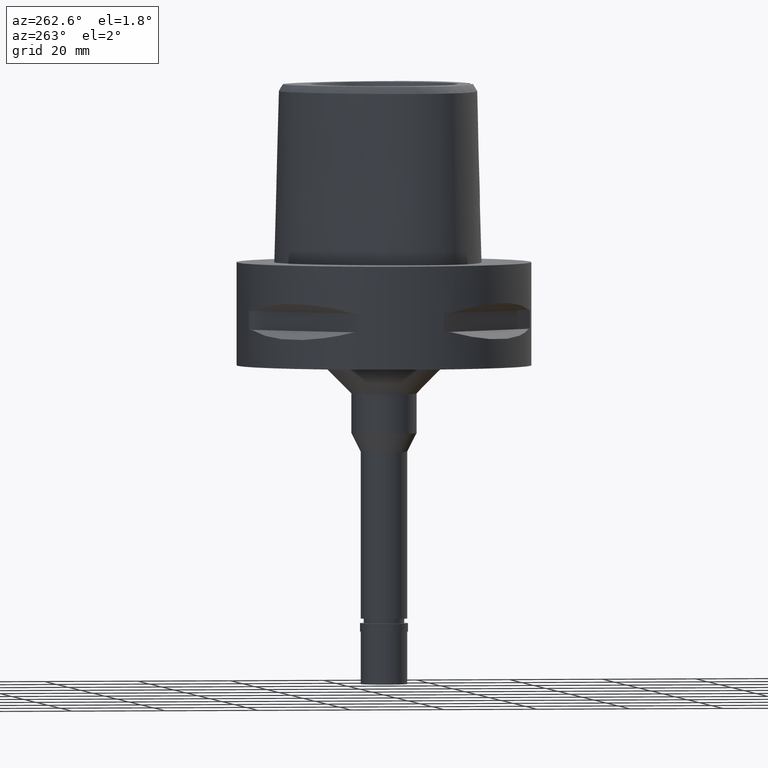
[diagram: clean part render]
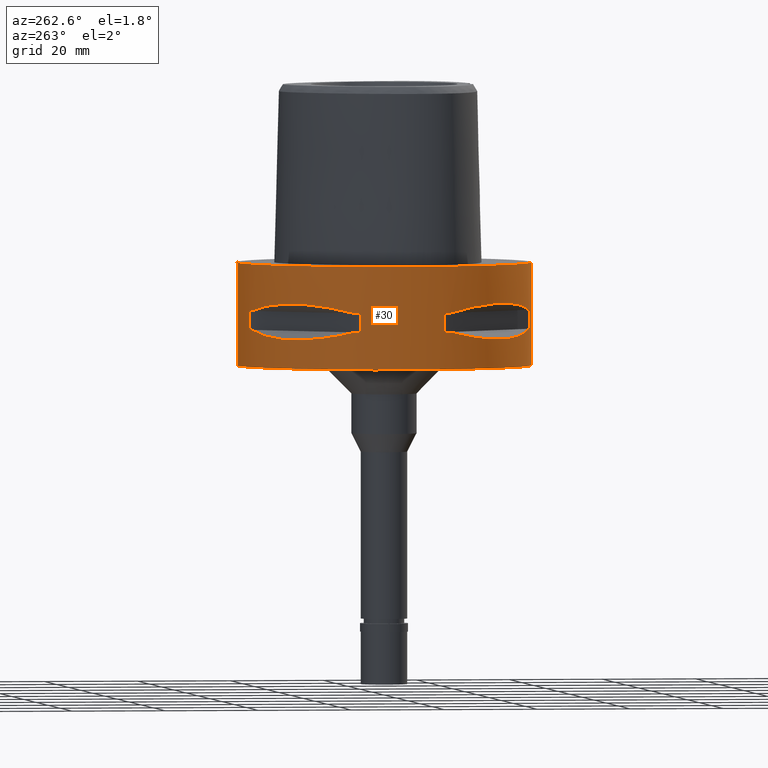
[diagram: same view with one face highlighted and labeled with its STEP entity id]
A machine part, auxiliary view. The second image highlights one B-rep face of the part: STEP entity #30.
In plain terms, the highlighted cylindrical surface (partial cylindrical patch) has radius 31.5 mm, axis along (0, 0, -1).
Its self-contained STEP definition (entity closure, byte-faithful):
#30 = ADVANCED_FACE ( 'NONE', ( #2249, #32, #2273 ), #813, .T. ) ;
#32 = FACE_BOUND ( 'NONE', #2233, .T. ) ;
#42 = DIRECTION ( 'NONE',  ( 0.0000000000000000000, -1.000000000000000000, 0.0000000000000000000 ) ) ;
#81 = ORIENTED_EDGE ( 'NONE', *, *, #3148, .F. ) ;
#87 = ORIENTED_EDGE ( 'NONE', *, *, #2111, .T. ) ;
#91 = ORIENTED_EDGE ( 'NONE', *, *, #1196, .T. ) ;
#119 = CARTESIAN_POINT ( 'NONE',  ( 0.0000000000000000000, 1.277490308530999908E-14, -9.950000000000001066 ) ) ;
#143 = CARTESIAN_POINT ( 'NONE',  ( -29.71690375017999841, -10.44775724750000023, -9.950000000002001244 ) ) ;
#158 = EDGE_CURVE ( 'NONE', #3780, #4651, #2885, .T. ) ;
#170 = EDGE_CURVE ( 'NONE', #3256, #1503, #2481, .T. ) ;
#173 = CARTESIAN_POINT ( 'NONE',  ( -29.71690375017999841, 10.44775724750000023, -14.05000000000000071 ) ) ;
#193 = ORIENTED_EDGE ( 'NONE', *, *, #2756, .T. ) ;
#227 = AXIS2_PLACEMENT_3D ( 'NONE', #884, #1675, #3972 ) ;
#234 = CARTESIAN_POINT ( 'NONE',  ( -10.44775724750000023, -29.71690375017999841, -9.950000000002001244 ) ) ;
#241 = LINE ( 'NONE', #664, #3764 ) ;
#245 = CARTESIAN_POINT ( 'NONE',  ( -26.42800887047648928, 17.14106442934974339, -15.43984550238795883 ) ) ;
#257 = ORIENTED_EDGE ( 'NONE', *, *, #4073, .T. ) ;
#298 = CARTESIAN_POINT ( 'NONE',  ( -26.58330558444622227, -16.89910283486742415, -15.40446471307544662 ) ) ;
#306 = VERTEX_POINT ( 'NONE', #1399 ) ;
#323 = CARTESIAN_POINT ( 'NONE',  ( -20.64154884328072370, 23.90617837147178193, -8.160627831312675440 ) ) ;
#335 = EDGE_LOOP ( 'NONE', ( #2162, #81, #3801, #91 ) ) ;
#341 = B_SPLINE_CURVE_WITH_KNOTS ( 'NONE', 3,
 ( #4457, #2862, #2456, #4796, #4436, #4483, #3694, #3271, #1323, #234 ),
 .UNSPECIFIED., .F., .F.,
 ( 4, 2, 2, 2, 4 ),
 ( 0.0000000000000000000, 0.2499999999999999445, 0.4999999999999998890, 0.7499999999999997780, 1.000000000000000000 ),
 .UNSPECIFIED. ) ;
#349 = ORIENTED_EDGE ( 'NONE', *, *, #3697, .T. ) ;
#353 = CARTESIAN_POINT ( 'NONE',  ( 0.0000000000000000000, 1.277490308530999908E-14, 4.315000000000000391 ) ) ;
#369 = LINE ( 'NONE', #2752, #1080 ) ;
#373 = CARTESIAN_POINT ( 'NONE',  ( -25.32725744467784779, -18.86897208072815246, -15.69588095933470129 ) ) ;
#414 = CARTESIAN_POINT ( 'NONE',  ( -8.981198972019999616, -30.19251670572000279, -14.05000000000000071 ) ) ;
#547 = VECTOR ( 'NONE', #3737, 1000.000000000000000 ) ;
#552 = VERTEX_POINT ( 'NONE', #1492 ) ;
#554 = CARTESIAN_POINT ( 'NONE',  ( -16.48208282229422039, 26.84474411198782207, -15.34094883778343110 ) ) ;
#580 = LINE ( 'NONE', #4025, #547 ) ;
#619 = AXIS2_PLACEMENT_3D ( 'NONE', #4665, #2736, #2428 ) ;
#664 = CARTESIAN_POINT ( 'NONE',  ( -8.981198972016999349, 30.19251670572000279, -9.950000000000001066 ) ) ;
#675 = CARTESIAN_POINT ( 'NONE',  ( -29.31542262584122227, -11.58970337495909853, -14.35229357167468578 ) ) ;
#701 = CARTESIAN_POINT ( 'NONE',  ( 0.0000000000000000000, 1.277490308530999908E-14, -14.05000000000000071 ) ) ;
#705 = EDGE_CURVE ( 'NONE', #2063, #1284, #4840, .T. ) ;
#717 = ORIENTED_EDGE ( 'NONE', *, *, #705, .T. ) ;
#771 = CARTESIAN_POINT ( 'NONE',  ( 0.0000000000000000000, 1.277490308530999908E-14, 0.0000000000000000000 ) ) ;
#777 = CARTESIAN_POINT ( 'NONE',  ( -16.96123479565102343, -26.54368690921830520, -15.41365572341627121 ) ) ;
#813 = CYLINDRICAL_SURFACE ( 'NONE', #1190, 31.50000000000000000 ) ;
#843 = B_SPLINE_CURVE_WITH_KNOTS ( 'NONE', 3,
 ( #905, #3992, #2065, #4810, #3612, #554, #2164, #2903, #3710, #4076, #1789, #2474, #2878, #3240, #1002, #3638, #4101, #245, #4880, #3331, #2113, #1744, #3312, #173 ),
 .UNSPECIFIED., .F., .F.,
 ( 4, 1, 1, 1, 1, 1, 2, 2, 2, 1, 1, 1, 1, 1, 2, 2, 4 ),
 ( 0.0000000000000000000, 0.1249999999999908684, 0.1874999999999862887, 0.2187499999999841516, 0.2343749999999829858, 0.2421874999999825973, 0.2460937499999824030, 0.2499999999999822364, 0.4999999999999892308, 0.6249999999999928946, 0.6874999999999945599, 0.7187499999999956701, 0.7343749999999963363, 0.7421874999999965583, 0.7460937499999964473, 0.7499999999999963363, 1.000000000000000000 ),
 .UNSPECIFIED. ) ;
#884 = CARTESIAN_POINT ( 'NONE',  ( 0.0000000000000000000, 1.277490308530999908E-14, -9.950000000000001066 ) ) ;
#887 = LINE ( 'NONE', #3119, #2395 ) ;
#892 = CARTESIAN_POINT ( 'NONE',  ( 0.0000000000000000000, 1.277490308530999908E-14, -9.950000000000001066 ) ) ;
#905 = CARTESIAN_POINT ( 'NONE',  ( -10.44775724750000023, 29.71690375017999841, -14.05000000000000071 ) ) ;
#950 = CARTESIAN_POINT ( 'NONE',  ( -29.71690375017999841, -10.44775724750000023, -14.05000000000000071 ) ) ;
#956 = CIRCLE ( 'NONE', #2069, 31.50000000000000711 ) ;
#1002 = CARTESIAN_POINT ( 'NONE',  ( -25.43927894891552910, 18.59229662065583355, -15.62866126334707850 ) ) ;
#1058 = CARTESIAN_POINT ( 'NONE',  ( -21.46242677079953509, -23.08532645887220625, -15.83938991065873481 ) ) ;
#1080 = VECTOR ( 'NONE', #3842, 1000.000000000000000 ) ;
#1083 = CARTESIAN_POINT ( 'NONE',  ( -27.64634172017731117, -15.11986997311805325, -15.11207862404262947 ) ) ;
#1138 = CARTESIAN_POINT ( 'NONE',  ( -23.89673728052704504, -20.65093790438166010, -15.83935804901764932 ) ) ;
#1145 = CARTESIAN_POINT ( 'NONE',  ( -14.84422749199032943, 27.88214534470565198, -8.906206096500943303 ) ) ;
#1190 = AXIS2_PLACEMENT_3D ( 'NONE', #353, #1583, #3853 ) ;
#1196 = EDGE_CURVE ( 'NONE', #306, #2179, #1269, .T. ) ;
#1269 = LINE ( 'NONE', #4362, #3693 ) ;
#1284 = VERTEX_POINT ( 'NONE', #4839 ) ;
#1313 = EDGE_CURVE ( 'NONE', #552, #2999, #843, .T. ) ;
#1323 = CARTESIAN_POINT ( 'NONE',  ( -12.70097436183464268, -28.92472615205406683, -9.353533115209112125 ) ) ;
#1374 = B_SPLINE_CURVE_WITH_KNOTS ( 'NONE', 3,
 ( #2659, #2400, #1145, #3012, #323, #3417, #2425, #4998, #3038, #4363 ),
 .UNSPECIFIED., .F., .F.,
 ( 4, 2, 2, 2, 4 ),
 ( 0.0000000000000000000, 0.2500000000000000000, 0.5000000000000000000, 0.7500000000000000000, 1.000000000000000000 ),
 .UNSPECIFIED. ) ;
#1396 = EDGE_CURVE ( 'NONE', #1734, #306, #3141, .T. ) ;
#1399 = CARTESIAN_POINT ( 'NONE',  ( 0.0000000000000000000, 31.50000000000000000, 0.0000000000000000000 ) ) ;
#1464 = CARTESIAN_POINT ( 'NONE',  ( -14.89252659057813055, -27.86285265926396093, -15.10765629752128092 ) ) ;
#1490 = CARTESIAN_POINT ( 'NONE',  ( -12.73197616788688613, -28.91382665368660909, -14.65467361754157416 ) ) ;
#1492 = CARTESIAN_POINT ( 'NONE',  ( -10.44775724750000023, 29.71690375017999841, -14.05000000000000071 ) ) ;
#1501 = CARTESIAN_POINT ( 'NONE',  ( 0.0000000000000000000, 1.277490308530999908E-14, -14.05000000000000071 ) ) ;
#1503 = VERTEX_POINT ( 'NONE', #143 ) ;
#1519 = AXIS2_PLACEMENT_3D ( 'NONE', #1952, #2302, #3495 ) ;
#1529 = CARTESIAN_POINT ( 'NONE',  ( -30.19251670572000279, -8.981198972016999349, -9.950000000000001066 ) ) ;
#1563 = ORIENTED_EDGE ( 'NONE', *, *, #4572, .F. ) ;
#1567 = DIRECTION ( 'NONE',  ( 0.0000000000000000000, 0.0000000000000000000, -1.000000000000000000 ) ) ;
#1583 = DIRECTION ( 'NONE',  ( 0.0000000000000000000, 0.0000000000000000000, -1.000000000000000000 ) ) ;
#1598 = AXIS2_PLACEMENT_3D ( 'NONE', #3416, #2246, #2658 ) ;
#1618 = VERTEX_POINT ( 'NONE', #2494 ) ;
#1675 = DIRECTION ( 'NONE',  ( 0.0000000000000000000, 0.0000000000000000000, 1.000000000000000000 ) ) ;
#1702 = CARTESIAN_POINT ( 'NONE',  ( -29.71690375017999841, 10.44775724750000023, -14.05000000000000071 ) ) ;
#1722 = EDGE_CURVE ( 'NONE', #2179, #4544, #2719, .T. ) ;
#1734 = VERTEX_POINT ( 'NONE', #4668 ) ;
#1744 = CARTESIAN_POINT ( 'NONE',  ( -27.86285265926213128, 14.89252659058332462, -15.10765629752265049 ) ) ;
#1781 = EDGE_LOOP ( 'NONE', ( #349, #3351, #3674, #4585, #87, #1563, #2516, #193 ) ) ;
#1789 = CARTESIAN_POINT ( 'NONE',  ( -18.86897208075159327, 25.32725744466621975, -15.69588095933951699 ) ) ;
#1839 = CARTESIAN_POINT ( 'NONE',  ( -20.18579225689235912, -24.23018836743684545, -15.78559396979766305 ) ) ;
#1896 = DIRECTION ( 'NONE',  ( 0.0000000000000000000, 0.0000000000000000000, -1.000000000000000000 ) ) ;
#1944 = DIRECTION ( 'NONE',  ( 0.0000000000000000000, 0.0000000000000000000, -1.000000000000000000 ) ) ;
#1952 = CARTESIAN_POINT ( 'NONE',  ( 0.0000000000000000000, 1.277490308530999908E-14, -9.950000000000001066 ) ) ;
#1972 = VECTOR ( 'NONE', #1896, 1000.000000000000000 ) ;
#2001 = CARTESIAN_POINT ( 'NONE',  ( -8.981198972019999616, 30.19251670572000279, -9.950000000000001066 ) ) ;
#2044 = DIRECTION ( 'NONE',  ( 0.0000000000000000000, 0.0000000000000000000, 1.000000000000000000 ) ) ;
#2063 = VERTEX_POINT ( 'NONE', #2001 ) ;
#2065 = CARTESIAN_POINT ( 'NONE',  ( -13.25636937905250079, 28.62019653468292901, -14.74888225541883280 ) ) ;
#2069 = AXIS2_PLACEMENT_3D ( 'NONE', #701, #1944, #4255 ) ;
#2072 = AXIS2_PLACEMENT_3D ( 'NONE', #3518, #3146, #4692 ) ;
#2111 = EDGE_CURVE ( 'NONE', #2356, #1618, #956, .T. ) ;
#2113 = CARTESIAN_POINT ( 'NONE',  ( -26.54368690921832652, 16.96123479565093461, -15.41365572341623924 ) ) ;
#2153 = EDGE_CURVE ( 'NONE', #2356, #4651, #2465, .T. ) ;
#2155 = VERTEX_POINT ( 'NONE', #4633 ) ;
#2162 = ORIENTED_EDGE ( 'NONE', *, *, #1722, .T. ) ;
#2163 = CARTESIAN_POINT ( 'NONE',  ( -8.981198972016999349, -30.19251670572000279, -9.950000000000001066 ) ) ;
#2164 = CARTESIAN_POINT ( 'NONE',  ( -16.70616724746166426, 26.70521063584618915, -15.37546661818032945 ) ) ;
#2179 = VERTEX_POINT ( 'NONE', #2918 ) ;
#2233 = EDGE_LOOP ( 'NONE', ( #257, #3633, #3554, #4046, #4934, #3159, #717, #3831 ) ) ;
#2246 = DIRECTION ( 'NONE',  ( 0.0000000000000000000, 0.0000000000000000000, 1.000000000000000000 ) ) ;
#2249 = FACE_OUTER_BOUND ( 'NONE', #335, .T. ) ;
#2260 = EDGE_CURVE ( 'NONE', #2063, #3980, #241, .T. ) ;
#2263 = CARTESIAN_POINT ( 'NONE',  ( -10.44775724750000023, -29.71690375017999841, -14.05000000000000071 ) ) ;
#2273 = FACE_BOUND ( 'NONE', #1781, .T. ) ;
#2291 = CARTESIAN_POINT ( 'NONE',  ( -27.11872488588982577, -16.03138450079550026, -15.26880420108212633 ) ) ;
#2302 = DIRECTION ( 'NONE',  ( 0.0000000000000000000, 0.0000000000000000000, 1.000000000000000000 ) ) ;
#2326 = CARTESIAN_POINT ( 'NONE',  ( -26.70521063584573085, -16.70616724746297521, -15.37546661818069893 ) ) ;
#2356 = VERTEX_POINT ( 'NONE', #950 ) ;
#2367 = AXIS2_PLACEMENT_3D ( 'NONE', #892, #3202, #4675 ) ;
#2395 = VECTOR ( 'NONE', #2044, 1000.000000000000000 ) ;
#2400 = CARTESIAN_POINT ( 'NONE',  ( -12.70092055730904868, 28.92474506844683901, -9.353547358229718611 ) ) ;
#2425 = CARTESIAN_POINT ( 'NONE',  ( -25.37272068398780434, 18.81462633032050746, -8.309724968599477180 ) ) ;
#2428 = DIRECTION ( 'NONE',  ( -0.9584925938322735872, 0.2851174276831918153, 0.0000000000000000000 ) ) ;
#2456 = CARTESIAN_POINT ( 'NONE',  ( -27.88214534470564132, -14.84422749199031877, -8.906206096500943303 ) ) ;
#2465 = B_SPLINE_CURVE_WITH_KNOTS ( 'NONE', 3,
 ( #3844, #675, #3464, #1083, #2291, #4150, #2326, #3763, #3063, #298, #373, #1138, #1058, #1839, #3388, #4955, #4932, #3790, #3873, #2678, #777, #1464, #1490, #2263 ),
 .UNSPECIFIED., .F., .F.,
 ( 4, 1, 1, 1, 1, 1, 2, 2, 2, 1, 1, 1, 1, 1, 2, 2, 4 ),
 ( 0.0000000000000000000, 0.1249999999999996947, 0.1874999999999995837, 0.2187499999999996392, 0.2343749999999997224, 0.2421874999999996392, 0.2460937499999994726, 0.2499999999999993339, 0.4999999999999910072, 0.6249999999999866773, 0.6874999999999845679, 0.7187499999999832356, 0.7343749999999825695, 0.7421874999999822364, 0.7460937499999822364, 0.7499999999999822364, 1.000000000000000000 ),
 .UNSPECIFIED. ) ;
#2474 = CARTESIAN_POINT ( 'NONE',  ( -20.65093790436479892, 23.89673728055571900, -15.83935804902246147 ) ) ;
#2478 = CARTESIAN_POINT ( 'NONE',  ( -30.19251670572000279, 8.981198972019999616, -14.05000000000000071 ) ) ;
#2481 = CIRCLE ( 'NONE', #1519, 31.50000000000001776 ) ;
#2494 = CARTESIAN_POINT ( 'NONE',  ( -30.19251670572000279, -8.981198972016999349, -14.05000000000000071 ) ) ;
#2516 = ORIENTED_EDGE ( 'NONE', *, *, #170, .T. ) ;
#2658 = DIRECTION ( 'NONE',  ( 0.0000000000000000000, 1.000000000000000000, 0.0000000000000000000 ) ) ;
#2659 = CARTESIAN_POINT ( 'NONE',  ( -10.44775724750000023, 29.71690375017999841, -9.950000000002001244 ) ) ;
#2678 = CARTESIAN_POINT ( 'NONE',  ( -16.98999780422360573, -26.52527364208699723, -15.41788098766641646 ) ) ;
#2712 = DIRECTION ( 'NONE',  ( 0.0000000000000000000, 0.0000000000000000000, -1.000000000000000000 ) ) ;
#2719 = CIRCLE ( 'NONE', #1598, 31.50000000000000000 ) ;
#2729 = AXIS2_PLACEMENT_3D ( 'NONE', #771, #1567, #42 ) ;
#2736 = DIRECTION ( 'NONE',  ( 0.0000000000000000000, 0.0000000000000000000, -1.000000000000000000 ) ) ;
#2752 = CARTESIAN_POINT ( 'NONE',  ( -30.19251670572000279, 8.981198972016999349, -14.05000000000000071 ) ) ;
#2756 = EDGE_CURVE ( 'NONE', #1503, #2923, #341, .T. ) ;
#2785 = CARTESIAN_POINT ( 'NONE',  ( -10.44775724750000023, -29.71690375017999841, -9.950000000002001244 ) ) ;
#2835 = EDGE_CURVE ( 'NONE', #3780, #3968, #887, .T. ) ;
#2847 = EDGE_CURVE ( 'NONE', #2984, #2999, #3043, .T. ) ;
#2862 = CARTESIAN_POINT ( 'NONE',  ( -28.92474506844683546, -12.70092055730903802, -9.353547358229720388 ) ) ;
#2878 = CARTESIAN_POINT ( 'NONE',  ( -23.08532645888064394, 21.46242677078517502, -15.83938991065631363 ) ) ;
#2885 = CIRCLE ( 'NONE', #4105, 31.50000000000001776 ) ;
#2896 = EDGE_CURVE ( 'NONE', #552, #3980, #3537, .T. ) ;
#2903 = CARTESIAN_POINT ( 'NONE',  ( -16.80193241490824008, 26.64486562695909555, -15.38992683736019096 ) ) ;
#2918 = CARTESIAN_POINT ( 'NONE',  ( 0.0000000000000000000, 31.50000000000000000, -22.00000000000000000 ) ) ;
#2923 = VERTEX_POINT ( 'NONE', #2785 ) ;
#2984 = VERTEX_POINT ( 'NONE', #2478 ) ;
#2999 = VERTEX_POINT ( 'NONE', #1702 ) ;
#3012 = CARTESIAN_POINT ( 'NONE',  ( -18.81455742163205613, 25.37277178168287151, -8.309746333130389573 ) ) ;
#3038 = CARTESIAN_POINT ( 'NONE',  ( -28.92472615205409170, 12.70097436183466932, -9.353533115209115678 ) ) ;
#3043 = CIRCLE ( 'NONE', #619, 31.50000000000001776 ) ;
#3063 = CARTESIAN_POINT ( 'NONE',  ( -26.60451452154899243, -16.86571563436900334, -15.39949295786335703 ) ) ;
#3078 = CARTESIAN_POINT ( 'NONE',  ( -8.981198972016999349, 30.19251670572000279, -14.05000000000000071 ) ) ;
#3112 = DIRECTION ( 'NONE',  ( 0.0000000000000000000, 0.0000000000000000000, -1.000000000000000000 ) ) ;
#3119 = CARTESIAN_POINT ( 'NONE',  ( -8.981198972016999349, -30.19251670572000279, -14.05000000000000071 ) ) ;
#3141 = CIRCLE ( 'NONE', #2729, 31.50000000000000000 ) ;
#3146 = DIRECTION ( 'NONE',  ( 0.0000000000000000000, 0.0000000000000000000, -1.000000000000000000 ) ) ;
#3148 = EDGE_CURVE ( 'NONE', #1734, #4544, #580, .T. ) ;
#3159 = ORIENTED_EDGE ( 'NONE', *, *, #2260, .F. ) ;
#3178 = CARTESIAN_POINT ( 'NONE',  ( 0.0000000000000000000, -31.50000000000000000, -22.00000000000000000 ) ) ;
#3202 = DIRECTION ( 'NONE',  ( 0.0000000000000000000, 0.0000000000000000000, 1.000000000000000000 ) ) ;
#3240 = CARTESIAN_POINT ( 'NONE',  ( -24.23018836745160698, 20.18579225686725565, -15.78559396979343354 ) ) ;
#3256 = VERTEX_POINT ( 'NONE', #4200 ) ;
#3271 = CARTESIAN_POINT ( 'NONE',  ( -14.84430321578702738, -27.88210502983994132, -8.906184731970032686 ) ) ;
#3312 = CARTESIAN_POINT ( 'NONE',  ( -28.91382665368477944, 12.73197616789208197, -14.65467361754293485 ) ) ;
#3331 = CARTESIAN_POINT ( 'NONE',  ( -26.52527364208752303, 16.98999780422271044, -15.41788098766625659 ) ) ;
#3351 = ORIENTED_EDGE ( 'NONE', *, *, #2835, .F. ) ;
#3388 = CARTESIAN_POINT ( 'NONE',  ( -18.59229662067467004, -25.43927894890445529, -15.62866126335025641 ) ) ;
#3416 = CARTESIAN_POINT ( 'NONE',  ( 0.0000000000000000000, 1.277490308530999908E-14, -22.00000000000000000 ) ) ;
#3417 = CARTESIAN_POINT ( 'NONE',  ( -23.90617837147178193, 20.64154884328073081, -8.160613588468008217 ) ) ;
#3464 = CARTESIAN_POINT ( 'NONE',  ( -28.62019653467917379, -13.25636937906317847, -14.74888225542168207 ) ) ;
#3495 = DIRECTION ( 'NONE',  ( -0.9584925938322735872, -0.2851174276831918153, 0.0000000000000000000 ) ) ;
#3502 = VERTEX_POINT ( 'NONE', #3947 ) ;
#3518 = CARTESIAN_POINT ( 'NONE',  ( 0.0000000000000000000, 1.277490308530999908E-14, -14.05000000000000071 ) ) ;
#3537 = CIRCLE ( 'NONE', #2072, 31.50000000000000711 ) ;
#3554 = ORIENTED_EDGE ( 'NONE', *, *, #2847, .T. ) ;
#3565 = CARTESIAN_POINT ( 'NONE',  ( -10.44775724750000023, -29.71690375017999841, -14.05000000000000071 ) ) ;
#3580 = CIRCLE ( 'NONE', #4232, 31.50000000000000711 ) ;
#3612 = CARTESIAN_POINT ( 'NONE',  ( -16.03138450079080712, 27.11872488589147068, -15.26880420108086156 ) ) ;
#3633 = ORIENTED_EDGE ( 'NONE', *, *, #4788, .F. ) ;
#3638 = CARTESIAN_POINT ( 'NONE',  ( -26.01217882834692929, 17.76952662672333716, -15.52665221626398839 ) ) ;
#3656 = DIRECTION ( 'NONE',  ( 0.0000000000000000000, 0.0000000000000000000, 1.000000000000000000 ) ) ;
#3674 = ORIENTED_EDGE ( 'NONE', *, *, #158, .T. ) ;
#3693 = VECTOR ( 'NONE', #3112, 1000.000000000000000 ) ;
#3694 = CARTESIAN_POINT ( 'NONE',  ( -18.81462633032050391, -25.37272068398777947, -8.309724968599475403 ) ) ;
#3697 = EDGE_CURVE ( 'NONE', #2923, #3968, #3580, .T. ) ;
#3710 = CARTESIAN_POINT ( 'NONE',  ( -16.86571563436860188, 26.60451452154913454, -15.39949295786322558 ) ) ;
#3737 = DIRECTION ( 'NONE',  ( 0.0000000000000000000, 0.0000000000000000000, -1.000000000000000000 ) ) ;
#3763 = CARTESIAN_POINT ( 'NONE',  ( -26.64486562695883620, -16.80193241490900746, -15.38992683736042011 ) ) ;
#3764 = VECTOR ( 'NONE', #4419, 1000.000000000000000 ) ;
#3780 = VERTEX_POINT ( 'NONE', #414 ) ;
#3790 = CARTESIAN_POINT ( 'NONE',  ( -17.14106442935278807, -26.42800887047471647, -15.43984550238848108 ) ) ;
#3796 = LINE ( 'NONE', #1529, #1972 ) ;
#3801 = ORIENTED_EDGE ( 'NONE', *, *, #1396, .T. ) ;
#3831 = ORIENTED_EDGE ( 'NONE', *, *, #4599, .T. ) ;
#3842 = DIRECTION ( 'NONE',  ( 0.0000000000000000000, 0.0000000000000000000, 1.000000000000000000 ) ) ;
#3844 = CARTESIAN_POINT ( 'NONE',  ( -29.71690375017999841, -10.44775724750000023, -14.05000000000000071 ) ) ;
#3853 = DIRECTION ( 'NONE',  ( 0.0000000000000000000, -1.000000000000000000, 0.0000000000000000000 ) ) ;
#3873 = CARTESIAN_POINT ( 'NONE',  ( -17.05047092244640083, -26.48642424310511601, -15.42670883407999227 ) ) ;
#3905 = DIRECTION ( 'NONE',  ( -0.2851174276831918153, -0.9584925938322735872, 0.0000000000000000000 ) ) ;
#3913 = CIRCLE ( 'NONE', #2367, 31.50000000000000711 ) ;
#3947 = CARTESIAN_POINT ( 'NONE',  ( -30.19251670572000279, 8.981198972016999349, -9.950000000000001066 ) ) ;
#3968 = VERTEX_POINT ( 'NONE', #2163 ) ;
#3972 = DIRECTION ( 'NONE',  ( -0.2851174276831918153, 0.9584925938322735872, 0.0000000000000000000 ) ) ;
#3980 = VERTEX_POINT ( 'NONE', #3078 ) ;
#3992 = CARTESIAN_POINT ( 'NONE',  ( -11.58970337495298608, 29.31542262584333969, -14.35229357167303021 ) ) ;
#4025 = CARTESIAN_POINT ( 'NONE',  ( 0.0000000000000000000, -31.50000000000000000, 0.0000000000000000000 ) ) ;
#4046 = ORIENTED_EDGE ( 'NONE', *, *, #1313, .F. ) ;
#4073 = EDGE_CURVE ( 'NONE', #2155, #3502, #3913, .T. ) ;
#4076 = CARTESIAN_POINT ( 'NONE',  ( -16.89910283486704401, 26.58330558444640701, -15.40446471307534893 ) ) ;
#4101 = CARTESIAN_POINT ( 'NONE',  ( -26.29071741523750916, 17.35163608580039707, -15.46976201925746786 ) ) ;
#4105 = AXIS2_PLACEMENT_3D ( 'NONE', #1501, #2712, #3905 ) ;
#4150 = CARTESIAN_POINT ( 'NONE',  ( -26.84474411198696231, -16.48208282229673927, -15.34094883778413454 ) ) ;
#4200 = CARTESIAN_POINT ( 'NONE',  ( -30.19251670572000279, -8.981198972019999616, -9.950000000000001066 ) ) ;
#4232 = AXIS2_PLACEMENT_3D ( 'NONE', #119, #3656, #4809 ) ;
#4255 = DIRECTION ( 'NONE',  ( -0.9433937698468619626, -0.3316748332540863653, 0.0000000000000000000 ) ) ;
#4362 = CARTESIAN_POINT ( 'NONE',  ( 0.0000000000000000000, 31.50000000000000000, 0.0000000000000000000 ) ) ;
#4363 = CARTESIAN_POINT ( 'NONE',  ( -29.71690375017999841, 10.44775724750000023, -9.950000000002001244 ) ) ;
#4419 = DIRECTION ( 'NONE',  ( 0.0000000000000000000, 0.0000000000000000000, -1.000000000000000000 ) ) ;
#4436 = CARTESIAN_POINT ( 'NONE',  ( -23.90617837147175706, -20.64154884328073081, -8.160627831312675440 ) ) ;
#4457 = CARTESIAN_POINT ( 'NONE',  ( -29.71690375017999841, -10.44775724750000023, -9.950000000002001244 ) ) ;
#4483 = CARTESIAN_POINT ( 'NONE',  ( -20.64154884328073081, -23.90617837147174995, -8.160613588468008217 ) ) ;
#4544 = VERTEX_POINT ( 'NONE', #3178 ) ;
#4572 = EDGE_CURVE ( 'NONE', #3256, #1618, #3796, .T. ) ;
#4585 = ORIENTED_EDGE ( 'NONE', *, *, #2153, .F. ) ;
#4599 = EDGE_CURVE ( 'NONE', #1284, #2155, #1374, .T. ) ;
#4633 = CARTESIAN_POINT ( 'NONE',  ( -29.71690375017999841, 10.44775724750000023, -9.950000000002001244 ) ) ;
#4651 = VERTEX_POINT ( 'NONE', #3565 ) ;
#4665 = CARTESIAN_POINT ( 'NONE',  ( 0.0000000000000000000, 1.277490308530999908E-14, -14.05000000000000071 ) ) ;
#4668 = CARTESIAN_POINT ( 'NONE',  ( 0.0000000000000000000, -31.50000000000000000, 0.0000000000000000000 ) ) ;
#4675 = DIRECTION ( 'NONE',  ( -0.9433937698468619626, 0.3316748332540863653, 0.0000000000000000000 ) ) ;
#4692 = DIRECTION ( 'NONE',  ( -0.3316748332540863653, 0.9433937698468619626, 0.0000000000000000000 ) ) ;
#4788 = EDGE_CURVE ( 'NONE', #2984, #3502, #369, .T. ) ;
#4796 = CARTESIAN_POINT ( 'NONE',  ( -25.37277178168283953, -18.81455742163207390, -8.309746333130389573 ) ) ;
#4809 = DIRECTION ( 'NONE',  ( -0.3316748332540863653, -0.9433937698468619626, 0.0000000000000000000 ) ) ;
#4810 = CARTESIAN_POINT ( 'NONE',  ( -15.11986997311003300, 27.64634172018012848, -15.11207862404048008 ) ) ;
#4839 = CARTESIAN_POINT ( 'NONE',  ( -10.44775724750000023, 29.71690375017999841, -9.950000000002001244 ) ) ;
#4840 = CIRCLE ( 'NONE', #227, 31.50000000000001776 ) ;
#4880 = CARTESIAN_POINT ( 'NONE',  ( -26.48642424310615340, 17.05047092244463869, -15.42670883407968496 ) ) ;
#4932 = CARTESIAN_POINT ( 'NONE',  ( -17.35163608580627681, -26.29071741523403816, -15.46976201925846439 ) ) ;
#4934 = ORIENTED_EDGE ( 'NONE', *, *, #2896, .T. ) ;
#4955 = CARTESIAN_POINT ( 'NONE',  ( -17.76952662673432570, -26.01217882834047401, -15.52665221626585002 ) ) ;
#4998 = CARTESIAN_POINT ( 'NONE',  ( -27.88210502983995553, 14.84430321578704870, -8.906184731970036239 ) ) ;